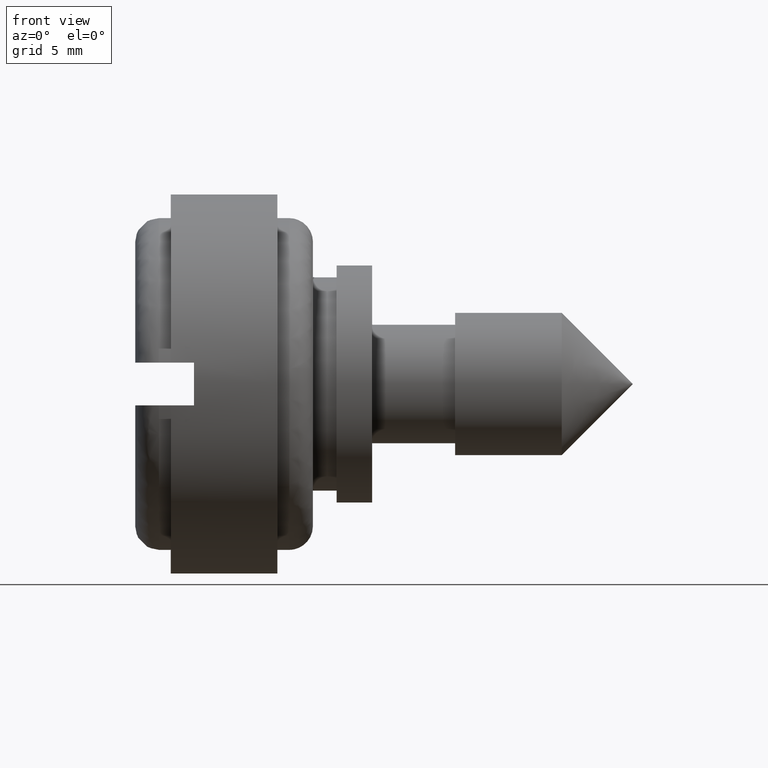
[diagram: clean part render]
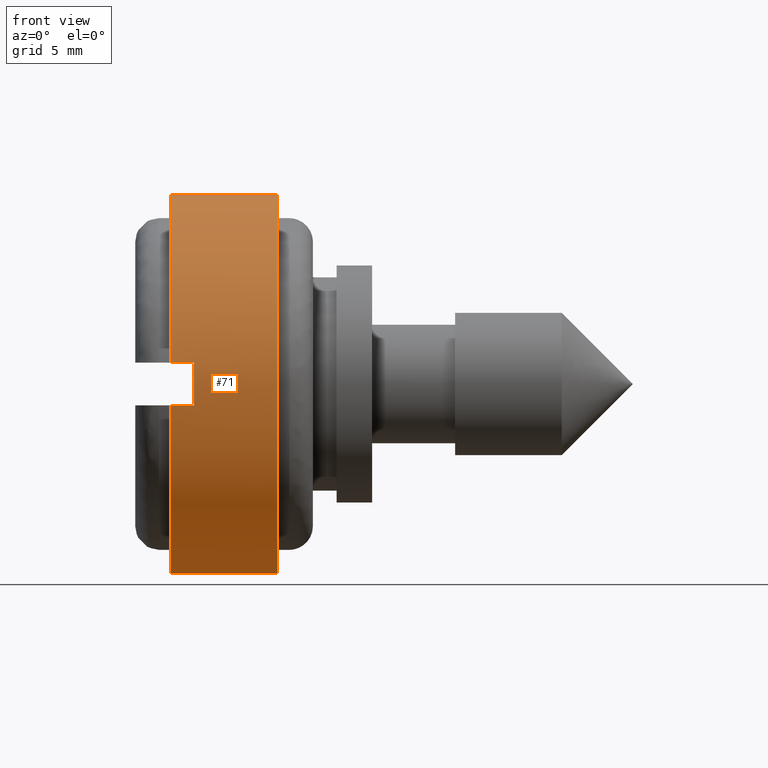
[diagram: same view with one face highlighted and labeled with its STEP entity id]
A machine part, front view. The second image highlights one B-rep face of the part: STEP entity #71.
In plain terms, the highlighted cylindrical surface (partial cylindrical patch) has radius 8 mm, axis along (1, -0, -0).
Its self-contained STEP definition (entity closure, byte-faithful):
#71=ADVANCED_FACE('',(#388),#387,.T.);
#387=CYLINDRICAL_SURFACE('',#656,8.00000000000E+00);
#388=FACE_OUTER_BOUND('',#657,.T.);
#653=CARTESIAN_POINT('',(0.00000000000E+00,0.00000000000E+00,0.00000000000E+00));
#654=DIRECTION('',(1.00000000000E+00,-0.00000000000E+00,-0.00000000000E+00));
#655=DIRECTION('',(0.00000000000E+00,0.00000000000E+00,-1.00000000000E+00));
#656=AXIS2_PLACEMENT_3D('',#653,#654,#655);
#657=EDGE_LOOP('',(#794,#795,#796,#797,#798,#799,#800,#801));
#794=ORIENTED_EDGE('',*,*,#830,.F.);
#795=ORIENTED_EDGE('',*,*,#819,.F.);
#796=ORIENTED_EDGE('',*,*,#812,.F.);
#797=ORIENTED_EDGE('',*,*,#807,.F.);
#798=ORIENTED_EDGE('',*,*,#853,.F.);
#799=ORIENTED_EDGE('',*,*,#872,.T.);
#800=ORIENTED_EDGE('',*,*,#832,.T.);
#801=ORIENTED_EDGE('',*,*,#873,.F.);
#807=EDGE_CURVE('',#903,#910,#911,.T.);
#812=EDGE_CURVE('',#910,#944,#945,.T.);
#819=EDGE_CURVE('',#944,#992,#993,.T.);
#830=EDGE_CURVE('',#992,#1062,#1063,.T.);
#832=EDGE_CURVE('',#1075,#1076,#1077,.T.);
#853=EDGE_CURVE('',#1215,#903,#1222,.T.);
#872=EDGE_CURVE('',#1215,#1075,#1341,.T.);
#873=EDGE_CURVE('',#1062,#1076,#1347,.T.);
#903=VERTEX_POINT('',#1382);
#910=VERTEX_POINT('',#1386);
#911=LINE('',#1387,#1388);
#944=VERTEX_POINT('',#1405);
#945=CIRCLE('',#1409,8.00000000000E+00);
#992=VERTEX_POINT('',#1441);
#993=LINE('',#1442,#1443);
#1062=VERTEX_POINT('',#1491);
#1063=CIRCLE('',#1495,8.00000000000E+00);
#1075=VERTEX_POINT('',#1500);
#1076=VERTEX_POINT('',#1501);
#1077=CIRCLE('',#1505,8.00000000000E+00);
#1215=VERTEX_POINT('',#1600);
#1222=CIRCLE('',#1608,8.00000000000E+00);
#1341=(BOUNDED_CURVE() B_SPLINE_CURVE(1,(#1662,#1663),.UNSPECIFIED.,.F.,.F.) B_SPLINE_CURVE_WITH_KNOTS((2,2),(8.33333313467E-02,9.16666670832E-01),.UNSPECIFIED.) CURVE() GEOMETRIC_REPRESENTATION_ITEM() RATIONAL_B_SPLINE_CURVE((1.00000000000E+00,1.00000000000E+00)) REPRESENTATION_ITEM('') );
#1347=(BOUNDED_CURVE() B_SPLINE_CURVE(1,(#1664,#1665),.UNSPECIFIED.,.F.,.F.) B_SPLINE_CURVE_WITH_KNOTS((2,2),(8.33333333333E-02,9.16666666667E-01),.UNSPECIFIED.) CURVE() GEOMETRIC_REPRESENTATION_ITEM() RATIONAL_B_SPLINE_CURVE((7.50000000000E-01,7.50000000000E-01)) REPRESENTATION_ITEM('') );
#1382=CARTESIAN_POINT('',(1.50000000000E+00,-7.94921379760E+00,-9.00000000000E-01));
#1386=CARTESIAN_POINT('',(2.48317965097E+00,-7.94921379760E+00,-9.00000000000E-01));
#1387=CARTESIAN_POINT('',(1.50000000000E+00,-7.94921379760E+00,-9.00000000000E-01));
#1388=VECTOR('',#1389,9.83179650971E-01);
#1389=DIRECTION('',(1.00000000000E+00,0.00000000000E+00,0.00000000000E+00));
#1405=CARTESIAN_POINT('',(2.48317965097E+00,-7.94921379760E+00,9.00000000016E-01));
#1406=CARTESIAN_POINT('',(2.48317965097E+00,0.00000000000E+00,0.00000000000E+00));
#1407=DIRECTION('',(-1.00000000000E+00,-0.00000000000E+00,5.54147777043E-14));
#1408=DIRECTION('',(5.54147777043E-14,-0.00000000000E+00,1.00000000000E+00));
#1409=AXIS2_PLACEMENT_3D('',#1406,#1407,#1408);
#1441=CARTESIAN_POINT('',(1.50000000000E+00,-7.94921379760E+00,9.00000000000E-01));
#1442=CARTESIAN_POINT('',(2.48317965097E+00,-7.94921379760E+00,9.00000000000E-01));
#1443=VECTOR('',#1444,9.83179650971E-01);
#1444=DIRECTION('',(-1.00000000000E+00,0.00000000000E+00,0.00000000000E+00));
#1491=CARTESIAN_POINT('',(1.50000000000E+00,-2.42740895946E-07,8.00000000000E+00));
#1492=CARTESIAN_POINT('',(1.50000000000E+00,0.00000000000E+00,0.00000000000E+00));
#1493=DIRECTION('',(-1.00000000000E+00,0.00000000000E+00,0.00000000000E+00));
#1494=DIRECTION('',(-0.00000000000E+00,-0.00000000000E+00,-1.00000000000E+00));
#1495=AXIS2_PLACEMENT_3D('',#1492,#1493,#1494);
#1500=CARTESIAN_POINT('',(6.00000000000E+00,-1.80596278672E-14,-8.00000000000E+00));
#1501=CARTESIAN_POINT('',(6.00000000000E+00,0.00000000000E+00,8.00000000000E+00));
#1502=CARTESIAN_POINT('',(6.00000000000E+00,0.00000000000E+00,0.00000000000E+00));
#1503=DIRECTION('',(-1.00000000000E+00,0.00000000000E+00,0.00000000000E+00));
#1504=DIRECTION('',(0.00000000000E+00,-1.22460635382E-16,1.00000000000E+00));
#1505=AXIS2_PLACEMENT_3D('',#1502,#1503,#1504);
#1600=CARTESIAN_POINT('',(1.50000000000E+00,4.34959217086E-10,-8.00000000000E+00));
#1605=CARTESIAN_POINT('',(1.50000000000E+00,0.00000000000E+00,0.00000000000E+00));
#1606=DIRECTION('',(-1.00000000000E+00,0.00000000000E+00,0.00000000000E+00));
#1607=DIRECTION('',(-0.00000000000E+00,9.93651724700E-01,-1.12500000000E-01));
#1608=AXIS2_PLACEMENT_3D('',#1605,#1606,#1607);
#1662=CARTESIAN_POINT('',(1.49999998927E+00,0.00000000000E+00,-8.00000000000E+00));
#1663=CARTESIAN_POINT('',(6.00000002249E+00,0.00000000000E+00,-8.00000000000E+00));
#1664=CARTESIAN_POINT('',(1.50000000000E+00,-2.96059473233E-16,8.00000000000E+00));
#1665=CARTESIAN_POINT('',(6.00000000000E+00,-2.96059473233E-16,8.00000000000E+00));